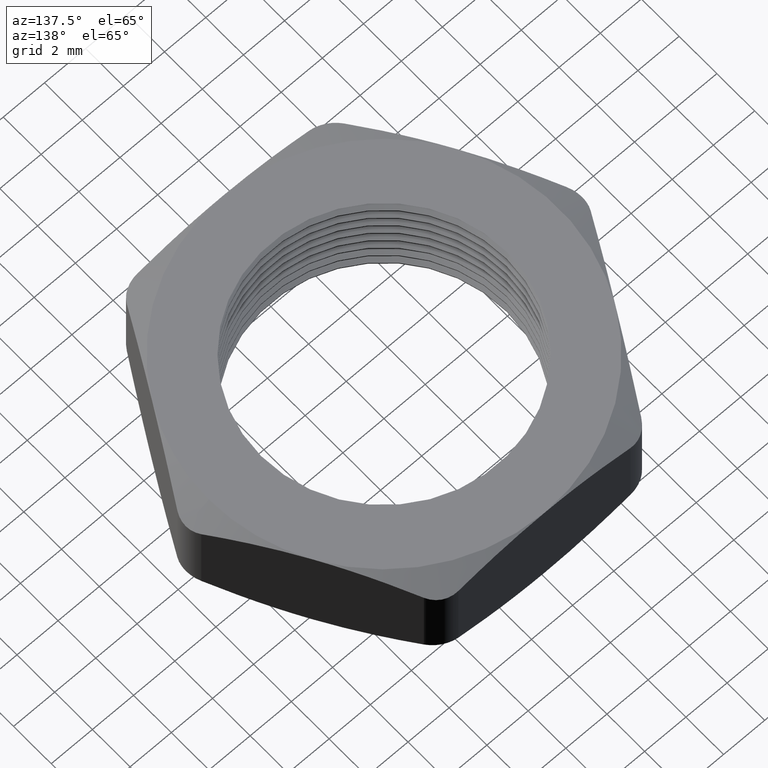
[diagram: clean part render]
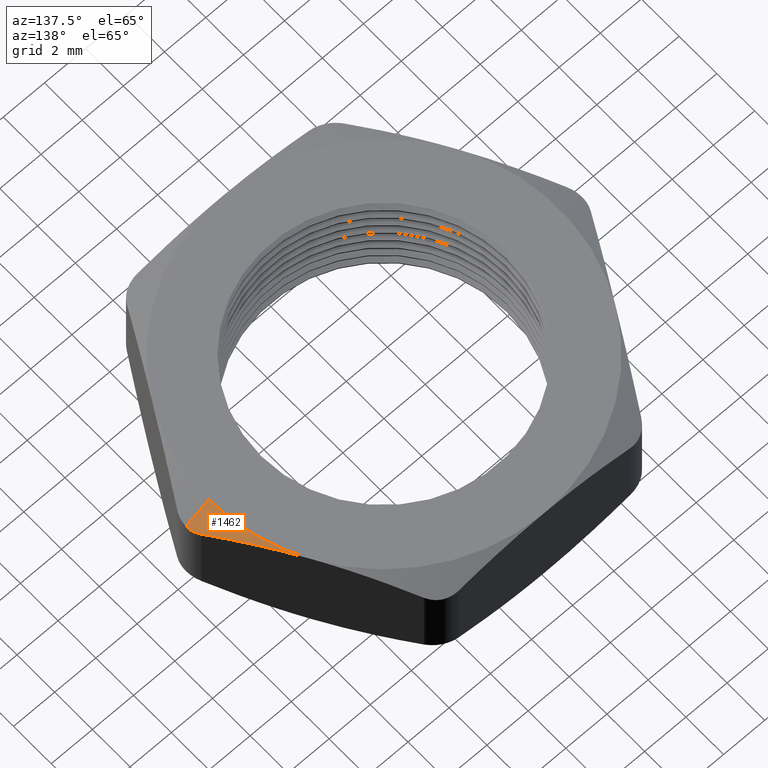
[diagram: same view with one face highlighted and labeled with its STEP entity id]
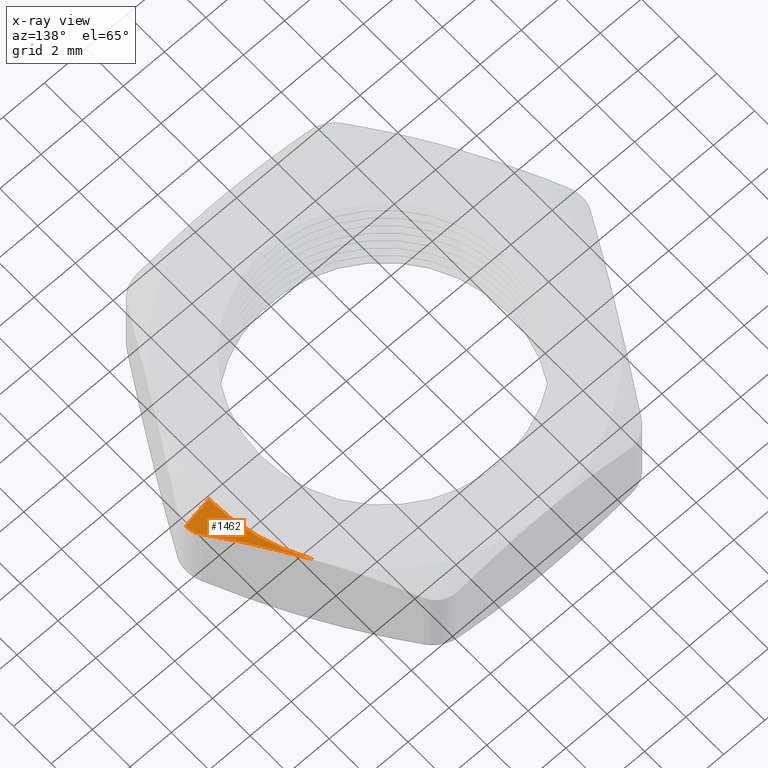
[diagram: x-ray of the same camera — body ghosted, the highlighted face saturated]
A machine part, auxiliary view. The second image highlights one B-rep face of the part: STEP entity #1462.
The next image is the same camera in x-ray: the body ghosted, the highlighted face saturated — about 0% of this face is hidden behind the body in this view.
In plain terms, the highlighted conical surface has half-angle 60 deg.
Its self-contained STEP definition (entity closure, byte-faithful):
#124 = CARTESIAN_POINT ( 'NONE',  ( 0.3790896534382616200, 2.043385615429010600E-014, 0.1745448267189558500 ) ) ;
#125 = DIRECTION ( 'NONE',  ( 0.8660254037844397100, 0.0000000000000000000, -0.4999999999999979500 ) ) ;
#126 = VECTOR ( 'NONE', #125, 39.37007874015748900 ) ;
#127 = CARTESIAN_POINT ( 'NONE',  ( 0.3350000000000001300, 0.0000000000000000000, 0.2000000000000000100 ) ) ;
#128 = LINE ( 'NONE', #127, #126 ) ;
#129 = CARTESIAN_POINT ( 'NONE',  ( 0.2901185102677872300, 0.1675000000000001500, 0.2000000000000000100 ) ) ;
#538 = CARTESIAN_POINT ( 'NONE',  ( 0.2901185102677872300, 0.1675000000000001500, 0.2000000000000000100 ) ) ;
#539 = CARTESIAN_POINT ( 'NONE',  ( 0.3180710791266953000, 0.1190847305343038400, 0.2000000000000000900 ) ) ;
#540 = CARTESIAN_POINT ( 'NONE',  ( 0.3454243599861889200, 0.07170745833195946200, 0.1916562742965461100 ) ) ;
#541 = CARTESIAN_POINT ( 'NONE',  ( 0.3723909236273088000, 0.02500000000000027200, 0.1779283887266048800 ) ) ;
#542 = B_SPLINE_CURVE_WITH_KNOTS ( 'NONE', 3,
 ( #541, #540, #539, #538 ),
 .UNSPECIFIED., .F., .F.,
 ( 4, 4 ),
 ( 0.0007543718654058161200, 0.004971059178098982500 ),
 .UNSPECIFIED. ) ;
#543 = CARTESIAN_POINT ( 'NONE',  ( 0.3723909236273088000, 0.02500000000000027200, 0.1779283887266048800 ) ) ;
#544 = CARTESIAN_POINT ( 'NONE',  ( 0.3745427104477404600, 0.02127299589995606400, 0.1768329772520501900 ) ) ;
#545 = CARTESIAN_POINT ( 'NONE',  ( 0.3762331691085618000, 0.01721539816637692600, 0.1759804665609512900 ) ) ;
#546 = CARTESIAN_POINT ( 'NONE',  ( 0.3784961774440686600, 0.008824760021981301400, 0.1748417381203156200 ) ) ;
#547 = CARTESIAN_POINT ( 'NONE',  ( 0.3790896534380838700, 0.004386855205189930400, 0.1745448267190449200 ) ) ;
#548 = CARTESIAN_POINT ( 'NONE',  ( 0.3790896534382616200, 2.043385615429010600E-014, 0.1745448267189558500 ) ) ;
#549 = CARTESIAN_POINT ( 'NONE',  ( 0.3723909236273088000, 0.02500000000000027200, 0.1779283887266048800 ) ) ;
#552 = CARTESIAN_POINT ( 'NONE',  ( 0.3350000000000001300, 0.0000000000000000000, 0.2000000000000000100 ) ) ;
#553 = DIRECTION ( 'NONE',  ( 1.000000000000000000, 0.0000000000000000000, 0.0000000000000000000 ) ) ;
#554 = DIRECTION ( 'NONE',  ( 0.0000000000000000000, 0.0000000000000000000, 1.000000000000000000 ) ) ;
#555 = CARTESIAN_POINT ( 'NONE',  ( 0.0000000000000000000, 0.0000000000000000000, 0.2000000000000000100 ) ) ;
#556 = AXIS2_PLACEMENT_3D ( 'NONE', #555, #554, #553 ) ;
#557 = CIRCLE ( 'NONE', #556, 0.3350000000000001300 ) ;
#568 = DIRECTION ( 'NONE',  ( 1.000000000000000000, 0.0000000000000000000, 0.0000000000000000000 ) ) ;
#569 = DIRECTION ( 'NONE',  ( 0.0000000000000000000, 0.0000000000000000000, -1.000000000000000000 ) ) ;
#570 = CARTESIAN_POINT ( 'NONE',  ( 0.0000000000000000000, 0.0000000000000000000, 0.2000000000000000100 ) ) ;
#571 = AXIS2_PLACEMENT_3D ( 'NONE', #570, #569, #568 ) ;
#573 = CONICAL_SURFACE ( 'NONE', #571, 0.3350000000000001300, 1.047197551196600100 ) ;
#574 = FACE_OUTER_BOUND ( 'NONE', #1463, .T. ) ;
#667 = B_SPLINE_CURVE_WITH_KNOTS ( 'NONE', 3,
 ( #548, #547, #546, #545, #544, #543 ),
 .UNSPECIFIED., .F., .F.,
 ( 4, 2, 4 ),
 ( 0.0006696470749436770200, 0.001003406031083403500, 0.001337164987223129900 ),
 .UNSPECIFIED. ) ;
#1462 = ADVANCED_FACE ( 'NONE', ( #574 ), #573, .T. ) ;
#1463 = EDGE_LOOP ( 'NONE', ( #1468, #1560, #1529, #1518 ) ) ;
#1468 = ORIENTED_EDGE ( 'NONE', *, *, #1469, .F. ) ;
#1469 = EDGE_CURVE ( 'NONE', #1470, #1559, #557, .T. ) ;
#1470 = VERTEX_POINT ( 'NONE', #552 ) ;
#1515 = EDGE_CURVE ( 'NONE', #1562, #1516, #667, .T. ) ;
#1516 = VERTEX_POINT ( 'NONE', #549 ) ;
#1518 = ORIENTED_EDGE ( 'NONE', *, *, #1519, .T. ) ;
#1519 = EDGE_CURVE ( 'NONE', #1516, #1559, #542, .T. ) ;
#1529 = ORIENTED_EDGE ( 'NONE', *, *, #1515, .T. ) ;
#1559 = VERTEX_POINT ( 'NONE', #129 ) ;
#1560 = ORIENTED_EDGE ( 'NONE', *, *, #1561, .T. ) ;
#1561 = EDGE_CURVE ( 'NONE', #1470, #1562, #128, .T. ) ;
#1562 = VERTEX_POINT ( 'NONE', #124 ) ;